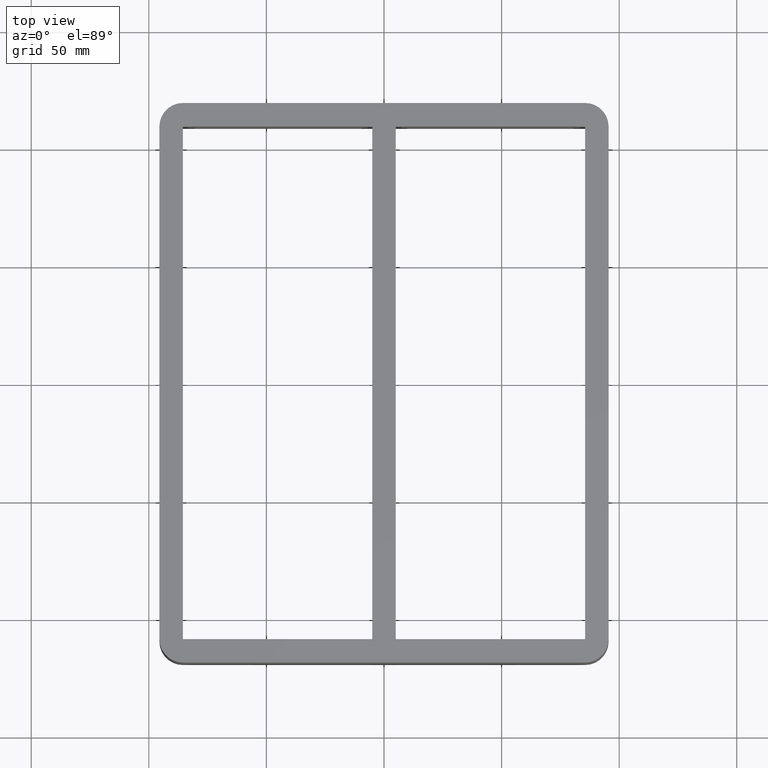
[diagram: clean part render]
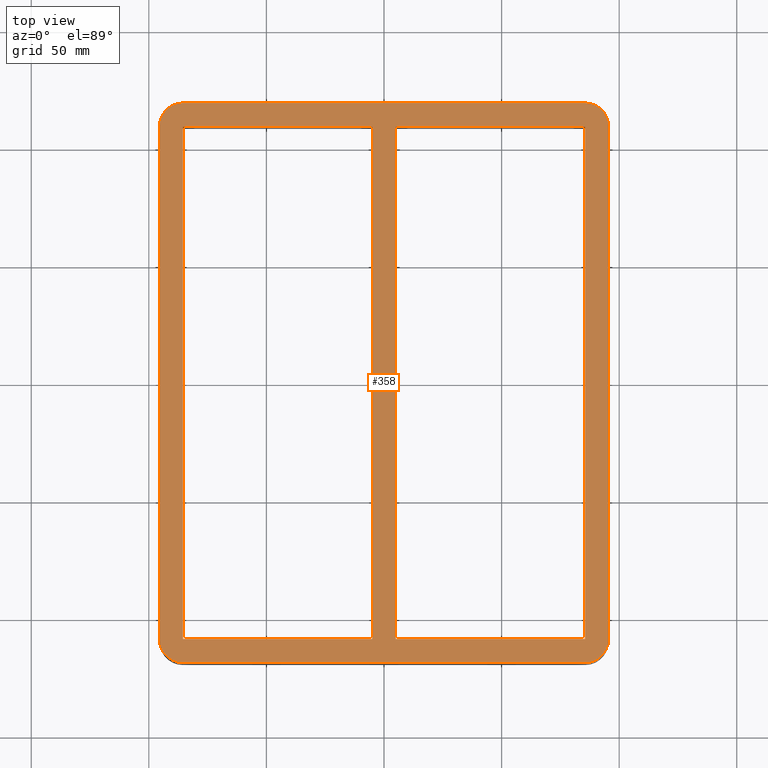
[diagram: same view with one face highlighted and labeled with its STEP entity id]
A machine part, top view. The second image highlights one B-rep face of the part: STEP entity #358.
In plain terms, the highlighted planar face has unit normal (0, 0, 1).
Its self-contained STEP definition (entity closure, byte-faithful):
#17=FACE_BOUND('',#69,.T.);
#18=FACE_BOUND('',#70,.T.);
#20=CIRCLE('',#389,10.);
#24=CIRCLE('',#396,10.);
#25=CIRCLE('',#399,10.);
#26=CIRCLE('',#402,10.);
#48=FACE_OUTER_BOUND('',#68,.T.);
#68=EDGE_LOOP('',(#311,#312,#313,#314,#315,#316,#317,#318));
#69=EDGE_LOOP('',(#319,#320,#321,#322));
#70=EDGE_LOOP('',(#323,#324,#325,#326));
#73=LINE('',#507,#113);
#76=LINE('',#513,#116);
#79=LINE('',#519,#119);
#82=LINE('',#523,#122);
#85=LINE('',#531,#125);
#88=LINE('',#537,#128);
#91=LINE('',#543,#131);
#94=LINE('',#547,#134);
#99=LINE('',#562,#139);
#105=LINE('',#582,#145);
#108=LINE('',#590,#148);
#110=LINE('',#596,#150);
#113=VECTOR('',#411,10.);
#116=VECTOR('',#416,10.);
#119=VECTOR('',#421,10.);
#122=VECTOR('',#426,10.);
#125=VECTOR('',#431,10.);
#128=VECTOR('',#436,10.);
#131=VECTOR('',#441,10.);
#134=VECTOR('',#446,10.);
#139=VECTOR('',#459,10.);
#145=VECTOR('',#479,10.);
#148=VECTOR('',#488,10.);
#150=VECTOR('',#496,10.);
#153=VERTEX_POINT('',#504);
#154=VERTEX_POINT('',#506);
#156=VERTEX_POINT('',#512);
#158=VERTEX_POINT('',#518);
#161=VERTEX_POINT('',#528);
#162=VERTEX_POINT('',#530);
#164=VERTEX_POINT('',#536);
#166=VERTEX_POINT('',#542);
#169=VERTEX_POINT('',#552);
#170=VERTEX_POINT('',#554);
#172=VERTEX_POINT('',#560);
#178=VERTEX_POINT('',#576);
#179=VERTEX_POINT('',#580);
#180=VERTEX_POINT('',#584);
#181=VERTEX_POINT('',#588);
#182=VERTEX_POINT('',#592);
#185=EDGE_CURVE('',#154,#153,#73,.T.);
#188=EDGE_CURVE('',#156,#154,#76,.T.);
#191=EDGE_CURVE('',#158,#156,#79,.T.);
#194=EDGE_CURVE('',#153,#158,#82,.T.);
#197=EDGE_CURVE('',#162,#161,#85,.T.);
#200=EDGE_CURVE('',#164,#162,#88,.T.);
#203=EDGE_CURVE('',#166,#164,#91,.T.);
#206=EDGE_CURVE('',#161,#166,#94,.T.);
#209=EDGE_CURVE('',#169,#170,#20,.T.);
#213=EDGE_CURVE('',#169,#172,#99,.T.);
#221=EDGE_CURVE('',#178,#172,#24,.T.);
#223=EDGE_CURVE('',#178,#179,#105,.T.);
#225=EDGE_CURVE('',#180,#179,#25,.T.);
#227=EDGE_CURVE('',#180,#181,#108,.T.);
#229=EDGE_CURVE('',#182,#181,#26,.T.);
#230=EDGE_CURVE('',#182,#170,#110,.T.);
#311=ORIENTED_EDGE('',*,*,#209,.F.);
#312=ORIENTED_EDGE('',*,*,#213,.T.);
#313=ORIENTED_EDGE('',*,*,#221,.F.);
#314=ORIENTED_EDGE('',*,*,#223,.T.);
#315=ORIENTED_EDGE('',*,*,#225,.F.);
#316=ORIENTED_EDGE('',*,*,#227,.T.);
#317=ORIENTED_EDGE('',*,*,#229,.F.);
#318=ORIENTED_EDGE('',*,*,#230,.T.);
#319=ORIENTED_EDGE('',*,*,#185,.T.);
#320=ORIENTED_EDGE('',*,*,#194,.T.);
#321=ORIENTED_EDGE('',*,*,#191,.T.);
#322=ORIENTED_EDGE('',*,*,#188,.T.);
#323=ORIENTED_EDGE('',*,*,#203,.T.);
#324=ORIENTED_EDGE('',*,*,#200,.T.);
#325=ORIENTED_EDGE('',*,*,#197,.T.);
#326=ORIENTED_EDGE('',*,*,#206,.T.);
#340=PLANE('',#404);
#358=ADVANCED_FACE('',(#48,#17,#18),#340,.T.);
#389=AXIS2_PLACEMENT_3D('',#555,#452,#453);
#396=AXIS2_PLACEMENT_3D('',#578,#474,#475);
#399=AXIS2_PLACEMENT_3D('',#586,#483,#484);
#402=AXIS2_PLACEMENT_3D('',#594,#492,#493);
#404=AXIS2_PLACEMENT_3D('',#597,#497,#498);
#411=DIRECTION('',(8.14842586880849E-17,-1.,0.));
#416=DIRECTION('',(1.,0.,0.));
#421=DIRECTION('',(9.45217400781785E-15,1.,0.));
#426=DIRECTION('',(-1.,-2.2066544588823E-16,0.));
#431=DIRECTION('',(8.14842586880849E-17,-1.,0.));
#436=DIRECTION('',(1.,0.,0.));
#441=DIRECTION('',(9.45217400781785E-15,1.,0.));
#446=DIRECTION('',(-1.,-2.2066544588823E-16,0.));
#452=DIRECTION('center_axis',(0.,0.,-1.));
#453=DIRECTION('ref_axis',(0.707106781186547,0.707106781186547,0.));
#459=DIRECTION('',(-1.,0.,0.));
#474=DIRECTION('center_axis',(0.,0.,-1.));
#475=DIRECTION('ref_axis',(-0.707106781186547,0.707106781186547,0.));
#479=DIRECTION('',(0.,-1.,0.));
#483=DIRECTION('center_axis',(0.,0.,-1.));
#484=DIRECTION('ref_axis',(-0.707106781186547,-0.707106781186547,0.));
#488=DIRECTION('',(1.,0.,0.));
#492=DIRECTION('center_axis',(0.,0.,-1.));
#493=DIRECTION('ref_axis',(0.707106781186547,-0.707106781186547,0.));
#496=DIRECTION('',(0.,1.,0.));
#497=DIRECTION('center_axis',(0.,0.,1.));
#498=DIRECTION('ref_axis',(1.,0.,0.));
#504=CARTESIAN_POINT('',(85.4999999999982,-109.000000000009,0.));
#506=CARTESIAN_POINT('',(85.4999999999982,108.999999999991,0.));
#507=CARTESIAN_POINT('',(85.4999999999982,54.4999999999952,0.));
#512=CARTESIAN_POINT('',(5.00000000000025,108.999999999991,0.));
#513=CARTESIAN_POINT('',(2.50000000000012,108.999999999991,0.));
#518=CARTESIAN_POINT('',(4.99999999999819,-109.000000000009,0.));
#519=CARTESIAN_POINT('',(4.9999999999987,-54.5000000000048,0.));
#523=CARTESIAN_POINT('',(42.7499999999991,-109.000000000009,0.));
#528=CARTESIAN_POINT('',(-5.00000000000181,-109.000000000009,0.));
#530=CARTESIAN_POINT('',(-5.00000000000183,108.999999999991,0.));
#531=CARTESIAN_POINT('',(-5.00000000000183,54.4999999999952,0.));
#536=CARTESIAN_POINT('',(-85.4999999999998,108.999999999991,0.));
#537=CARTESIAN_POINT('',(-42.7499999999999,108.999999999991,0.));
#542=CARTESIAN_POINT('',(-85.5000000000018,-109.000000000009,0.));
#543=CARTESIAN_POINT('',(-85.5000000000013,-54.5000000000044,0.));
#547=CARTESIAN_POINT('',(-2.50000000000089,-109.000000000009,0.));
#552=CARTESIAN_POINT('',(85.5,119.,0.));
#554=CARTESIAN_POINT('',(95.5,109.,0.));
#555=CARTESIAN_POINT('Origin',(85.5,109.,0.));
#560=CARTESIAN_POINT('',(-85.5,119.,0.));
#562=CARTESIAN_POINT('',(95.5,119.,0.));
#576=CARTESIAN_POINT('',(-95.5,109.,0.));
#578=CARTESIAN_POINT('Origin',(-85.5,109.,0.));
#580=CARTESIAN_POINT('',(-95.5,-109.,0.));
#582=CARTESIAN_POINT('',(-95.5,119.,0.));
#584=CARTESIAN_POINT('',(-85.5,-119.,0.));
#586=CARTESIAN_POINT('Origin',(-85.5,-109.,0.));
#588=CARTESIAN_POINT('',(85.5,-119.,0.));
#590=CARTESIAN_POINT('',(-95.5,-119.,0.));
#592=CARTESIAN_POINT('',(95.5,-109.,0.));
#594=CARTESIAN_POINT('Origin',(85.5,-109.,0.));
#596=CARTESIAN_POINT('',(95.5,-119.,0.));
#597=CARTESIAN_POINT('Origin',(0.,-2.1316282072803E-13,0.));